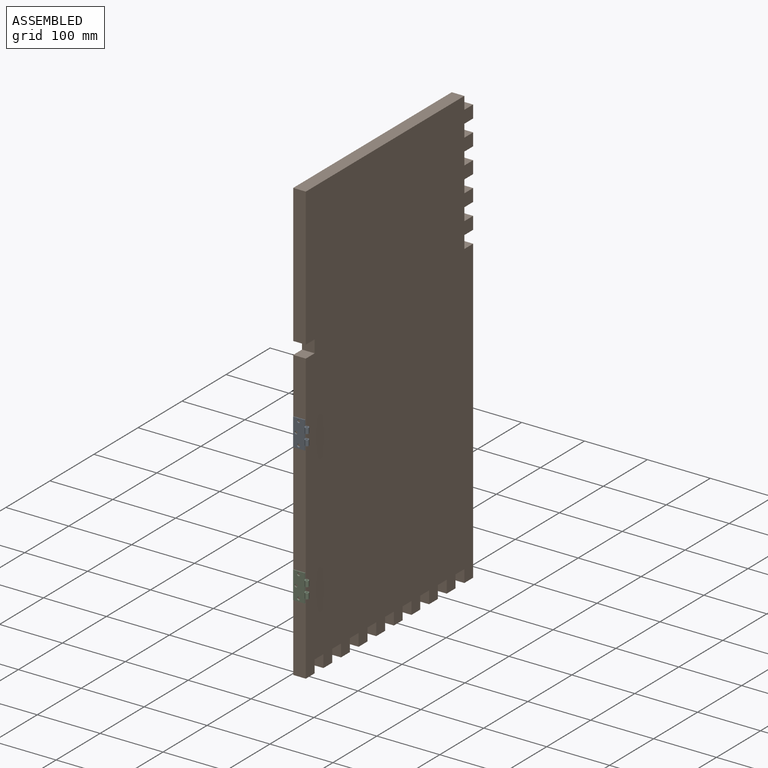
[diagram: assembled view]
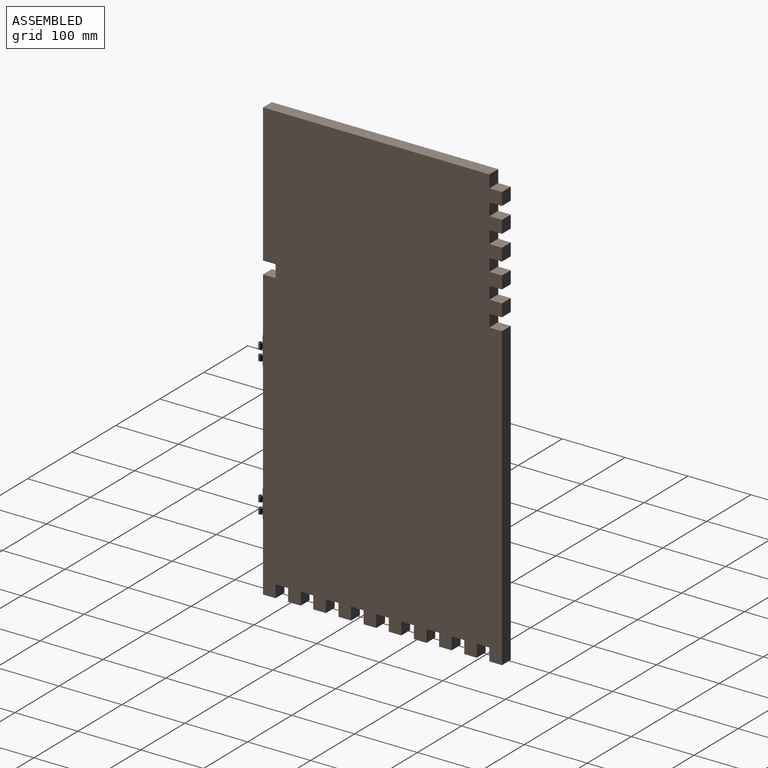
[diagram: assembled view, second angle]
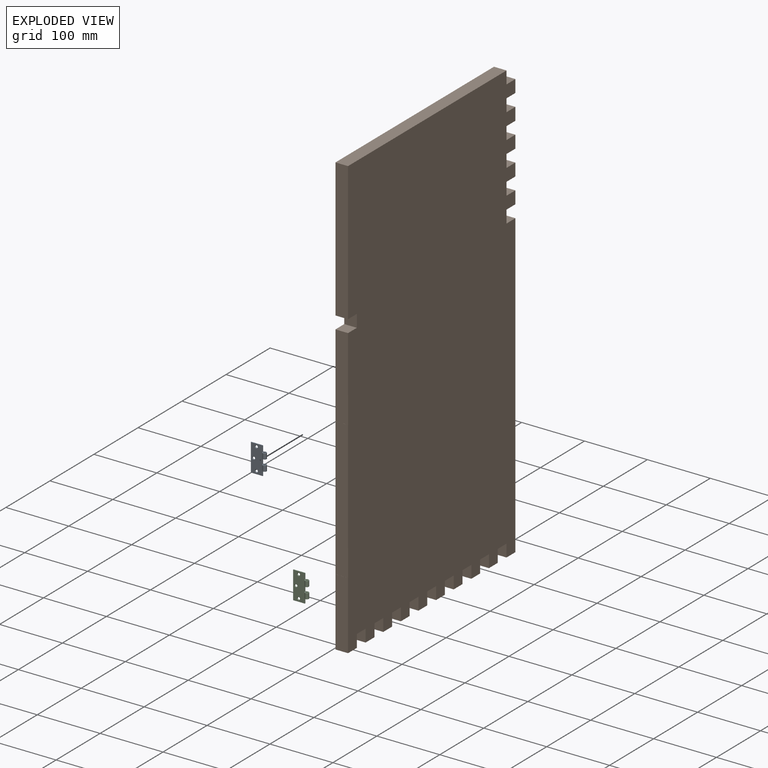
[diagram: exploded view]
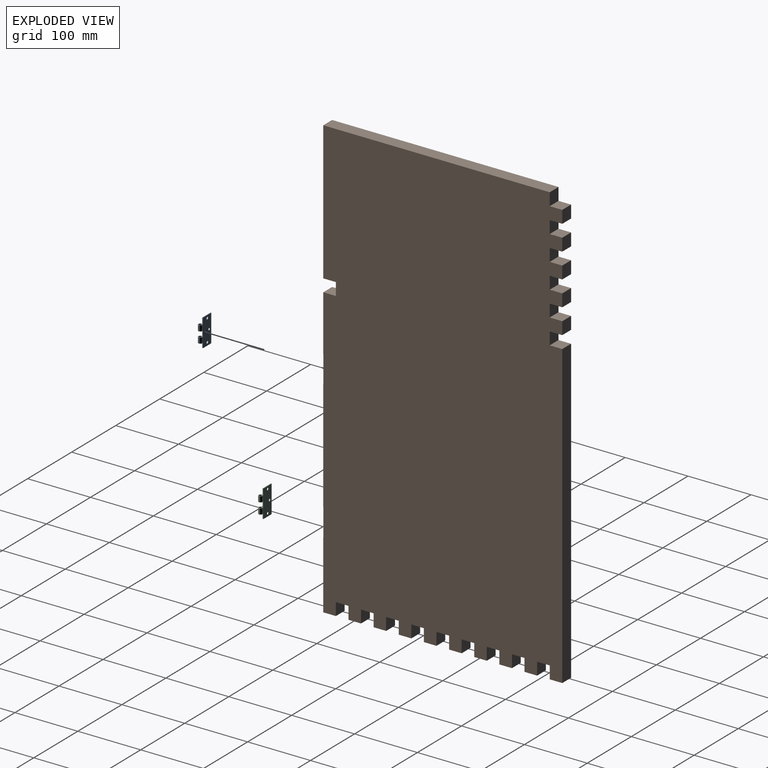
[diagram: exploded view, second angle]
ASSEMBLY  parts=3 mates=2
PART A: 25 faces, bbox 25.5x43.8x6.2 mm
  f0: plane 8.76x2.64mm, normal (-0.34,0,-0.94), area 24.5mm2, adj f2,f12,f21,f23
  f1: plane 8.76x2.64mm, normal (-0.34,0,-0.94), area 24.5mm2, adj f3,f12,f18,f20
  f2: cylinder r=3.08mm len=8.76mm, axis (0,1,0), area 142.8mm2, adj f0,f4,f21,f23
  f3: cylinder r=3.08mm len=8.76mm, axis (0,1,0), area 142.8mm2, adj f1,f5,f18,f20
  f4: plane 8.76x1.26mm, normal (0,0,-1), area 11.1mm2, adj f2,f6,f21,f23
  f5: plane 8.76x1.26mm, normal (0,0,-1), area 11.1mm2, adj f3,f7,f18,f20
  f6: cylinder r=1.88mm len=8.76mm, axis (0,1,0), area 89.5mm2, adj f4,f8,f21,f23
  f7: cylinder r=1.88mm len=8.76mm, axis (0,1,0), area 89.5mm2, adj f5,f9,f18,f20
  f8: plane 8.76x3.08mm, normal (0.32,0,0.95), area 28.5mm2, adj f6,f13,f21,f23
  f9: plane 8.76x3.08mm, normal (0.32,0,0.95), area 28.5mm2, adj f7,f13,f18,f20
  f10: plane 18.75x1.2mm, normal (0,-1,0), area 22.5mm2, adj f12,f13,f14,f19
  f11: plane 18.75x1.2mm, normal (0,1,0), area 22.5mm2, adj f12,f13,f14,f24
  f12: plane 43.8x18.75mm, normal (0,0,-1), area 790.7mm2, adj f0,f1,f10,f11,f14,f15,f16,f17
  f13: plane 43.8x18.75mm, normal (0,0,1), area 769.2mm2, adj f8,f9,f10,f11,f14,f15,f16,f17
  f14: plane 43.8x1.2mm, normal (-1,0,0), area 52.6mm2, adj f10,f11,f12,f13
  f15: cone r=2.4mm half-angle=26.6deg, axis (0,0,1), area 17.7mm2, adj f12,f13
  f16: cone r=2.25mm half-angle=20.6deg, axis (0,0,1), area 16.3mm2, adj f12,f13
  f17: cone r=2.4mm half-angle=26.6deg, axis (0,0,1), area 17.7mm2, adj f12,f13
  f18: plane 6.75x6.15mm, normal (0,-1,0), area 19.4mm2, adj f1,f3,f5,f7,f9,f19
  f19: plane 8.76x1.2mm, normal (1,0,0), area 10.5mm2, adj f10,f12,f13,f18
  f20: plane 6.75x6.15mm, normal (0,1,0), area 19.4mm2, adj f1,f3,f5,f7,f9,f22
  f21: plane 6.75x6.15mm, normal (0,-1,0), area 19.4mm2, adj f0,f2,f4,f6,f8,f22
  f22: plane 8.76x1.2mm, normal (1,0,0), area 10.5mm2, adj f12,f13,f20,f21
  f23: plane 6.75x6.15mm, normal (0,1,0), area 19.4mm2, adj f0,f2,f4,f6,f8,f24
  f24: plane 8.76x1.2mm, normal (1,0,0), area 10.5mm2, adj f11,f12,f13,f23
PART B: 76 faces, bbox 380x20x700 mm
  f0: plane 176.2x20mm, normal (-1,0,0), area 3524mm2, adj f3,f69,f70,f73
  f1: plane 88.1x20mm, normal (-1,0,0), area 1762mm2, adj f3,f68,f69,f74
  f2: plane 108.1x20mm, normal (-1,0,0), area 2162mm2, adj f3,f4,f69,f71
  f3: plane 700x380mm, normal (0,-1,0), area 259591.2mm2, adj f0,f1,f2,f4,f5,f6,f7,f8
  f4: plane 20x20mm, normal (0,0,-1), area 400mm2, adj f2,f3,f5,f69
  f5: plane 20x20mm, normal (1,0,0), area 400mm2, adj f3,f4,f6,f69
  f6: plane 20x20mm, normal (0,0,-1), area 400mm2, adj f3,f5,f7,f69
  f7: plane 20x20mm, normal (-1,0,0), area 400mm2, adj f3,f6,f8,f69
  f8: plane 20x20mm, normal (0,0,-1), area 400mm2, adj f3,f7,f9,f69
  f9: plane 20x20mm, normal (1,0,0), area 400mm2, adj f3,f8,f10,f69
  f10: plane 20x20mm, normal (0,0,-1), area 400mm2, adj f3,f9,f11,f69
  f11: plane 20x20mm, normal (-1,0,0), area 400mm2, adj f3,f10,f12,f69
  f12: plane 20x20mm, normal (0,0,-1), area 400mm2, adj f3,f11,f13,f69
  f13: plane 20x20mm, normal (1,0,0), area 400mm2, adj f3,f12,f14,f69
  f14: plane 20x20mm, normal (0,0,-1), area 400mm2, adj f3,f13,f15,f69
  f15: plane 20x20mm, normal (-1,0,0), area 400mm2, adj f3,f14,f16,f69
  f16: plane 20x20mm, normal (0,0,-1), area 400mm2, adj f3,f15,f17,f69
  f17: plane 20x20mm, normal (1,0,0), area 400mm2, adj f3,f16,f18,f69
  f18: plane 20x20mm, normal (0,0,-1), area 400mm2, adj f3,f17,f19,f69
  f19: plane 20x20mm, normal (-1,0,0), area 400mm2, adj f3,f18,f20,f69
  f20: plane 20x20mm, normal (0,0,-1), area 400mm2, adj f3,f19,f21,f69
  f21: plane 20x20mm, normal (1,0,0), area 400mm2, adj f3,f20,f22,f69
  f22: plane 20x20mm, normal (0,0,-1), area 400mm2, adj f3,f21,f23,f69
  f23: plane 20x20mm, normal (-1,0,0), area 400mm2, adj f3,f22,f24,f69
  f24: plane 20x20mm, normal (0,0,-1), area 400mm2, adj f3,f23,f25,f69
  f25: plane 20x20mm, normal (1,0,0), area 400mm2, adj f3,f24,f26,f69
  f26: plane 20x20mm, normal (0,0,-1), area 400mm2, adj f3,f25,f27,f69
  f27: plane 20x20mm, normal (-1,0,0), area 400mm2, adj f3,f26,f28,f69
  f28: plane 20x20mm, normal (0,0,-1), area 400mm2, adj f3,f27,f29,f69
  f29: plane 20x20mm, normal (1,0,0), area 400mm2, adj f3,f28,f30,f69
  f30: plane 20x20mm, normal (0,0,-1), area 400mm2, adj f3,f29,f31,f69
  f31: plane 20x20mm, normal (-1,0,0), area 400mm2, adj f3,f30,f32,f69
  f32: plane 20x20mm, normal (0,0,-1), area 400mm2, adj f3,f31,f33,f69
  f33: plane 20x20mm, normal (1,0,0), area 400mm2, adj f3,f32,f34,f69
  f34: plane 20x20mm, normal (0,0,-1), area 400mm2, adj f3,f33,f35,f69
  f35: plane 20x20mm, normal (-1,0,0), area 400mm2, adj f3,f34,f36,f69
  f36: plane 20x20mm, normal (0,0,-1), area 400mm2, adj f3,f35,f37,f69
  f37: plane 20x20mm, normal (1,0,0), area 400mm2, adj f3,f36,f38,f69
  f38: plane 20x20mm, normal (0,0,-1), area 400mm2, adj f3,f37,f39,f69
  f39: plane 20x20mm, normal (-1,0,0), area 400mm2, adj f3,f38,f40,f69
  f40: plane 20x20mm, normal (0,0,-1), area 400mm2, adj f3,f39,f41,f69
  f41: plane 480x20mm, normal (1,0,0), area 9600mm2, adj f3,f40,f42,f69
  f42: plane 20x20mm, normal (0,0,1), area 400mm2, adj f3,f41,f43,f69
  f43: plane 20x20mm, normal (1,0,0), area 400mm2, adj f3,f42,f44,f69
  f44: plane 20x20mm, normal (0,0,-1), area 400mm2, adj f3,f43,f45,f69
  f45: plane 20x20mm, normal (1,0,0), area 400mm2, adj f3,f44,f46,f69
  f46: plane 20x20mm, normal (0,0,1), area 400mm2, adj f3,f45,f47,f69
  f47: plane 20x20mm, normal (1,0,0), area 400mm2, adj f3,f46,f48,f69
  f48: plane 20x20mm, normal (0,0,-1), area 400mm2, adj f3,f47,f49,f69
  f49: plane 20x20mm, normal (1,0,0), area 400mm2, adj f3,f48,f50,f69
  f50: plane 20x20mm, normal (0,0,1), area 400mm2, adj f3,f49,f51,f69
  f51: plane 20x20mm, normal (1,0,0), area 400mm2, adj f3,f50,f52,f69
  f52: plane 20x20mm, normal (0,0,-1), area 400mm2, adj f3,f51,f53,f69
  f53: plane 20x20mm, normal (1,0,0), area 400mm2, adj f3,f52,f54,f69
  f54: plane 20x20mm, normal (0,0,1), area 400mm2, adj f3,f53,f55,f69
  f55: plane 20x20mm, normal (1,0,0), area 400mm2, adj f3,f54,f56,f69
  f56: plane 20x20mm, normal (0,0,-1), area 400mm2, adj f3,f55,f57,f69
  f57: plane 20x20mm, normal (1,0,0), area 400mm2, adj f3,f56,f58,f69
  f58: plane 20x20mm, normal (0,0,1), area 400mm2, adj f3,f57,f59,f69
  f59: plane 20x20mm, normal (1,0,0), area 400mm2, adj f3,f58,f60,f69
  f60: plane 20x20mm, normal (0,0,-1), area 400mm2, adj f3,f59,f61,f69
  f61: plane 20x20mm, normal (1,0,0), area 400mm2, adj f3,f60,f62,f69
  f62: plane 20x20mm, normal (0,0,1), area 400mm2, adj f3,f61,f63,f69
  f63: plane 20x20mm, normal (1,0,0), area 400mm2, adj f3,f62,f64,f69
  f64: plane 360x20mm, normal (0,0,1), area 7200mm2, adj f3,f63,f65,f69
  f65: plane 220x20mm, normal (-1,0,0), area 4400mm2, adj f3,f64,f66,f69
  f66: plane 20x20mm, normal (0,0,-1), area 400mm2, adj f3,f65,f67,f69
  f67: plane 20x20mm, normal (-1,0,0), area 400mm2, adj f3,f66,f68,f69
  f68: plane 20x20mm, normal (0,0,1), area 400mm2, adj f1,f3,f67,f69
  f69: plane 700x380mm, normal (0,1,0), area 259591.2mm2, adj f0,f1,f2,f4,f5,f6,f7,f8
  f70: plane 20x0.1mm, normal (0,0,-1), area 2mm2, adj f0,f3,f69,f72
  f71: plane 20x0.1mm, normal (0,0,1), area 2mm2, adj f2,f3,f69,f72
  f72: plane 43.8x20mm, normal (-1,0,0), area 876mm2, adj f3,f69,f70,f71
  f73: plane 20x0.1mm, normal (0,0,1), area 2mm2, adj f0,f3,f69,f75
  f74: plane 20x0.1mm, normal (0,0,-1), area 2mm2, adj f1,f3,f69,f75
  f75: plane 43.8x20mm, normal (-1,0,0), area 876mm2, adj f3,f69,f73,f74
PART C: same geometry as A
PLACE A rot(axis=(1,0,0),90deg) t=(143.1,62.8,361.54)mm
PLACE B rot(axis=(0,0,1),90deg) t=(17.55,70.7,-92.56)mm
PLACE C rot(axis=(1,0,0),90deg) t=(143.1,62.8,141.54)mm
MATE fastened A.f12 <-> B.f75  axis (0,1,0) through (27.55,70.8,237.44)mm
MATE fastened C.f12 <-> B.f72  axis (0,1,0) through (27.55,70.8,17.44)mm
